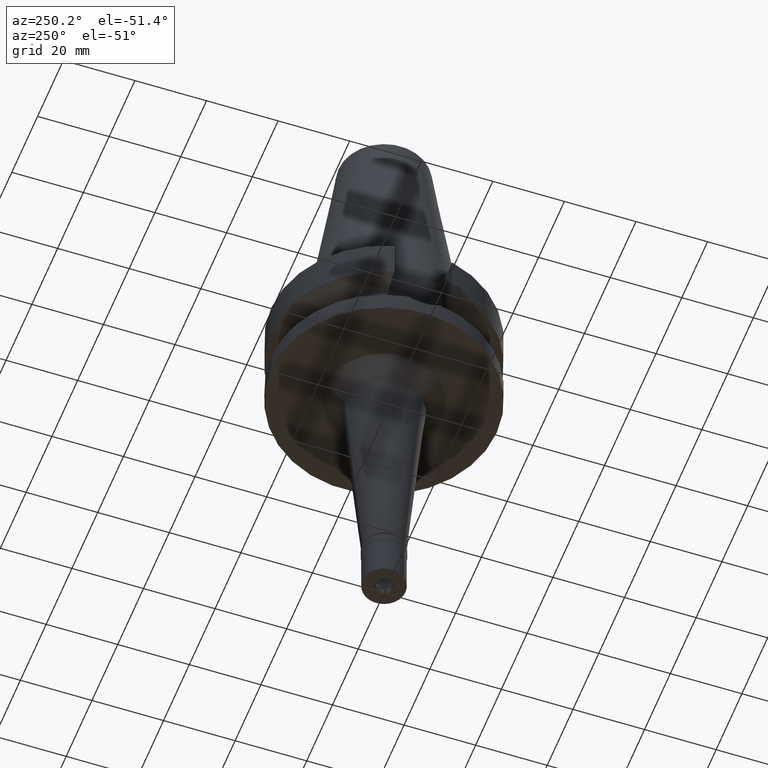
[diagram: clean part render]
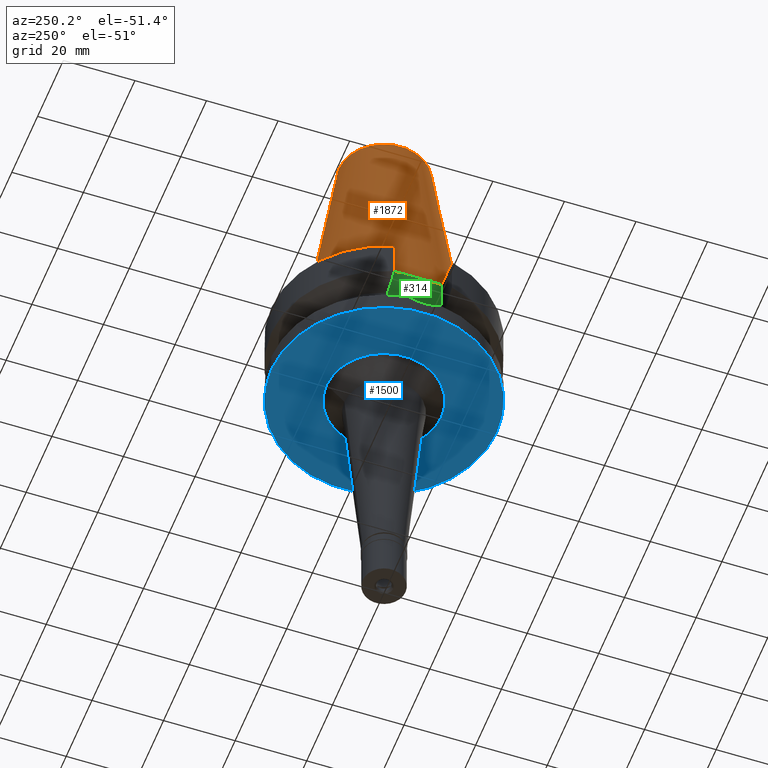
[diagram: same view with three faces highlighted in distinct colors, each labeled with its STEP entity id]
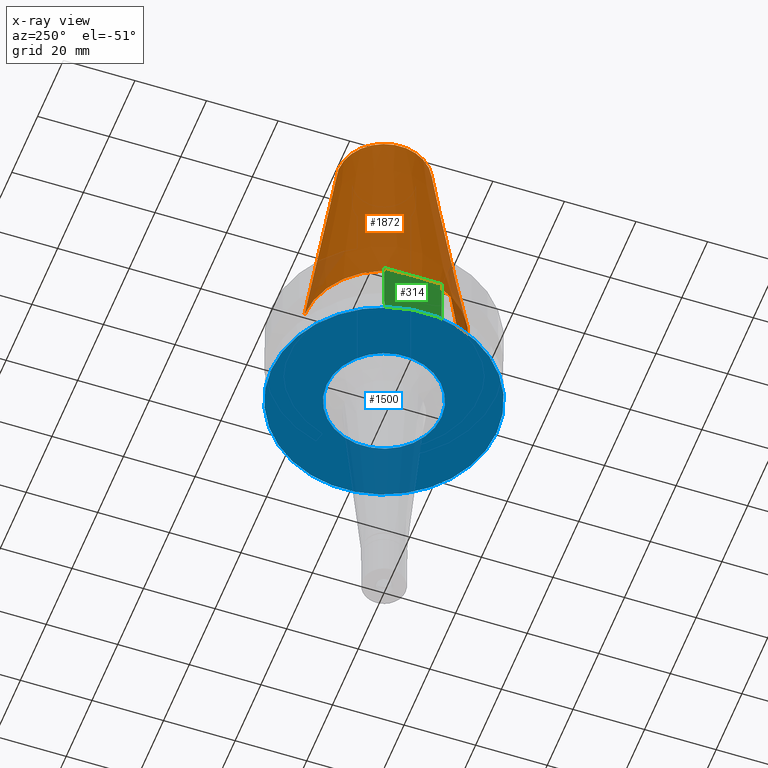
[diagram: x-ray of the same camera — body ghosted, the three highlighted faces saturated]
A machine part, auxiliary view with three faces highlighted in distinct colors.
The next image is the same camera in x-ray (body ghosted, the three faces saturated) — at least one of them is partly hidden behind the body in this view.
Their STEP definitions:

[orange] entity #1872 — the highlighted conical surface has half-angle 8.297 deg.
#65 = DIRECTION ( 'NONE',  ( 0.0000000000000000000, -1.000000000000000000, 0.0000000000000000000 ) ) ;
#108 = DIRECTION ( 'NONE',  ( 0.0000000000000000000, -1.000000000000000000, 0.0000000000000000000 ) ) ;
#260 = CARTESIAN_POINT ( 'NONE',  ( 0.0000000000000000000, 12.68766899429999917, 65.40000000000000568 ) ) ;
#324 = EDGE_CURVE ( 'NONE', #1921, #434, #699, .T. ) ;
#434 = VERTEX_POINT ( 'NONE', #598 ) ;
#444 = ORIENTED_EDGE ( 'NONE', *, *, #324, .T. ) ;
#450 = DIRECTION ( 'NONE',  ( 0.0000000000000000000, 0.0000000000000000000, -1.000000000000000000 ) ) ;
#452 = DIRECTION ( 'NONE',  ( 0.0000000000000000000, -0.1443043893539925626, -0.9895333461855498891 ) ) ;
#497 = EDGE_CURVE ( 'NONE', #1963, #2721, #678, .T. ) ;
#512 = CARTESIAN_POINT ( 'NONE',  ( 0.0000000000000000000, 12.68766899429999917, 65.40000000000000568 ) ) ;
#598 = CARTESIAN_POINT ( 'NONE',  ( 0.0000000000000000000, 22.22500000000000142, 1.065814103639999827E-13 ) ) ;
#672 = CIRCLE ( 'NONE', #2382, 22.22500000000000142 ) ;
#676 = DIRECTION ( 'NONE',  ( 0.0000000000000000000, -1.000000000000000000, 0.0000000000000000000 ) ) ;
#678 = LINE ( 'NONE', #2540, #1576 ) ;
#699 = LINE ( 'NONE', #260, #807 ) ;
#720 = CIRCLE ( 'NONE', #2517, 12.68766899429999917 ) ;
#784 = DIRECTION ( 'NONE',  ( 0.0000000000000000000, 0.0000000000000000000, -1.000000000000000000 ) ) ;
#807 = VECTOR ( 'NONE', #1143, 1000.000000000000114 ) ;
#942 = CARTESIAN_POINT ( 'NONE',  ( 0.0000000000000000000, -22.22500000000000142, 1.065814103639999827E-13 ) ) ;
#1143 = DIRECTION ( 'NONE',  ( 0.0000000000000000000, 0.1443043893539925626, -0.9895333461855498891 ) ) ;
#1204 = DIRECTION ( 'NONE',  ( 0.0000000000000000000, 0.0000000000000000000, -1.000000000000000000 ) ) ;
#1252 = EDGE_CURVE ( 'NONE', #2721, #434, #672, .T. ) ;
#1362 = CARTESIAN_POINT ( 'NONE',  ( 0.0000000000000000000, -12.68766899429999917, 65.40000000000000568 ) ) ;
#1395 = FACE_OUTER_BOUND ( 'NONE', #1906, .T. ) ;
#1481 = CARTESIAN_POINT ( 'NONE',  ( 0.0000000000000000000, 1.625106302469000024E-14, 2.842170943039999687E-14 ) ) ;
#1509 = ORIENTED_EDGE ( 'NONE', *, *, #497, .F. ) ;
#1576 = VECTOR ( 'NONE', #452, 1000.000000000000114 ) ;
#1626 = AXIS2_PLACEMENT_3D ( 'NONE', #2760, #450, #676 ) ;
#1750 = ORIENTED_EDGE ( 'NONE', *, *, #2061, .T. ) ;
#1872 = ADVANCED_FACE ( 'NONE', ( #1395 ), #2666, .T. ) ;
#1906 = EDGE_LOOP ( 'NONE', ( #2145, #1509, #1750, #444 ) ) ;
#1921 = VERTEX_POINT ( 'NONE', #512 ) ;
#1963 = VERTEX_POINT ( 'NONE', #1362 ) ;
#2061 = EDGE_CURVE ( 'NONE', #1963, #1921, #720, .T. ) ;
#2145 = ORIENTED_EDGE ( 'NONE', *, *, #1252, .F. ) ;
#2382 = AXIS2_PLACEMENT_3D ( 'NONE', #1481, #1204, #65 ) ;
#2517 = AXIS2_PLACEMENT_3D ( 'NONE', #2862, #784, #108 ) ;
#2540 = CARTESIAN_POINT ( 'NONE',  ( 0.0000000000000000000, -12.68766899429999917, 65.40000000000000568 ) ) ;
#2666 = CONICAL_SURFACE ( 'NONE', #1626, 17.45633449714999941, 0.1448099680379422438 ) ;
#2721 = VERTEX_POINT ( 'NONE', #942 ) ;
#2760 = CARTESIAN_POINT ( 'NONE',  ( 0.0000000000000000000, 1.625106302469000024E-14, 32.70000000000000284 ) ) ;
#2862 = CARTESIAN_POINT ( 'NONE',  ( 0.0000000000000000000, 1.625106302469000024E-14, 65.40000000000000568 ) ) ;

[blue] entity #1500 — the highlighted planar face has unit normal (0, 0, -1).
#56 = CIRCLE ( 'NONE', #1336, 31.50000000000000000 ) ;
#84 = DIRECTION ( 'NONE',  ( 0.0000000000000000000, 0.0000000000000000000, 1.000000000000000000 ) ) ;
#117 = CARTESIAN_POINT ( 'NONE',  ( 0.0000000000000000000, 31.50000000000000000, -27.00000000000000000 ) ) ;
#312 = ORIENTED_EDGE ( 'NONE', *, *, #1458, .F. ) ;
#332 = PLANE ( 'NONE',  #854 ) ;
#508 = DIRECTION ( 'NONE',  ( 0.0000000000000000000, -1.000000000000000000, 0.0000000000000000000 ) ) ;
#531 = CARTESIAN_POINT ( 'NONE',  ( 0.0000000000000000000, 2.127456419478999887E-14, -27.00000000000000000 ) ) ;
#579 = DIRECTION ( 'NONE',  ( 0.0000000000000000000, 1.000000000000000000, 0.0000000000000000000 ) ) ;
#702 = DIRECTION ( 'NONE',  ( 0.0000000000000000000, 1.000000000000000000, 0.0000000000000000000 ) ) ;
#765 = ORIENTED_EDGE ( 'NONE', *, *, #2847, .F. ) ;
#779 = DIRECTION ( 'NONE',  ( 0.0000000000000000000, 0.0000000000000000000, -1.000000000000000000 ) ) ;
#831 = VERTEX_POINT ( 'NONE', #117 ) ;
#854 = AXIS2_PLACEMENT_3D ( 'NONE', #1944, #779, #508 ) ;
#879 = ORIENTED_EDGE ( 'NONE', *, *, #2087, .F. ) ;
#895 = CARTESIAN_POINT ( 'NONE',  ( 0.0000000000000000000, 0.0000000000000000000, -27.00000000000000000 ) ) ;
#1023 = AXIS2_PLACEMENT_3D ( 'NONE', #895, #2314, #702 ) ;
#1027 = VERTEX_POINT ( 'NONE', #1150 ) ;
#1118 = CARTESIAN_POINT ( 'NONE',  ( 0.0000000000000000000, 0.0000000000000000000, -27.00000000000000000 ) ) ;
#1150 = CARTESIAN_POINT ( 'NONE',  ( 0.0000000000000000000, -16.05684475179999993, -27.00000000000000000 ) ) ;
#1156 = EDGE_LOOP ( 'NONE', ( #879, #765 ) ) ;
#1240 = FACE_BOUND ( 'NONE', #2566, .T. ) ;
#1257 = CARTESIAN_POINT ( 'NONE',  ( 0.0000000000000000000, 2.127456419478999887E-14, -27.00000000000000000 ) ) ;
#1336 = AXIS2_PLACEMENT_3D ( 'NONE', #1257, #1947, #579 ) ;
#1410 = AXIS2_PLACEMENT_3D ( 'NONE', #531, #84, #2864 ) ;
#1458 = EDGE_CURVE ( 'NONE', #1027, #2248, #2140, .T. ) ;
#1500 = ADVANCED_FACE ( 'NONE', ( #2625, #1240 ), #332, .T. ) ;
#1579 = AXIS2_PLACEMENT_3D ( 'NONE', #1118, #2538, #2057 ) ;
#1892 = VERTEX_POINT ( 'NONE', #2147 ) ;
#1944 = CARTESIAN_POINT ( 'NONE',  ( 0.0000000000000000000, 0.0000000000000000000, -27.00000000000000000 ) ) ;
#1947 = DIRECTION ( 'NONE',  ( 0.0000000000000000000, 0.0000000000000000000, 1.000000000000000000 ) ) ;
#1949 = ORIENTED_EDGE ( 'NONE', *, *, #2784, .F. ) ;
#2057 = DIRECTION ( 'NONE',  ( 0.0000000000000000000, -1.000000000000000000, 0.0000000000000000000 ) ) ;
#2087 = EDGE_CURVE ( 'NONE', #831, #1892, #56, .T. ) ;
#2140 = CIRCLE ( 'NONE', #1579, 16.05684475179999993 ) ;
#2147 = CARTESIAN_POINT ( 'NONE',  ( 0.0000000000000000000, -31.50000000000000000, -27.00000000000000000 ) ) ;
#2208 = CIRCLE ( 'NONE', #1023, 16.05684475179999993 ) ;
#2248 = VERTEX_POINT ( 'NONE', #2250 ) ;
#2250 = CARTESIAN_POINT ( 'NONE',  ( 0.0000000000000000000, 16.05684475179999993, -27.00000000000000000 ) ) ;
#2314 = DIRECTION ( 'NONE',  ( 0.0000000000000000000, 0.0000000000000000000, -1.000000000000000000 ) ) ;
#2538 = DIRECTION ( 'NONE',  ( 0.0000000000000000000, 0.0000000000000000000, -1.000000000000000000 ) ) ;
#2566 = EDGE_LOOP ( 'NONE', ( #1949, #312 ) ) ;
#2625 = FACE_OUTER_BOUND ( 'NONE', #1156, .T. ) ;
#2736 = CIRCLE ( 'NONE', #1410, 31.50000000000000000 ) ;
#2784 = EDGE_CURVE ( 'NONE', #2248, #1027, #2208, .T. ) ;
#2847 = EDGE_CURVE ( 'NONE', #1892, #831, #2736, .T. ) ;
#2864 = DIRECTION ( 'NONE',  ( 0.0000000000000000000, -1.000000000000000000, 0.0000000000000000000 ) ) ;

[green] entity #314 — the highlighted planar face has unit normal (-1, 0, 0).
#9 = CARTESIAN_POINT ( 'NONE',  ( -22.50000000000000000, -8.050000000000000711, -14.94999999999999929 ) ) ;
#47 = VECTOR ( 'NONE', #1444, 1000.000000000000000 ) ;
#142 = CARTESIAN_POINT ( 'NONE',  ( -22.50000000000000000, 1.807578675540999863E-14, -14.94999999999999929 ) ) ;
#213 = ORIENTED_EDGE ( 'NONE', *, *, #2977, .F. ) ;
#308 = ORIENTED_EDGE ( 'NONE', *, *, #2201, .F. ) ;
#313 = CARTESIAN_POINT ( 'NONE',  ( -22.50000000000000000, -8.050000000000000711, -1.000000000000000000 ) ) ;
#314 = ADVANCED_FACE ( 'NONE', ( #2962 ), #1364, .T. ) ;
#330 = CARTESIAN_POINT ( 'NONE',  ( -22.50000000000000000, -8.050000000000000711, -1.000000000000000000 ) ) ;
#365 = AXIS2_PLACEMENT_3D ( 'NONE', #142, #1799, #1557 ) ;
#441 = CARTESIAN_POINT ( 'NONE',  ( -22.50000000000000000, 2.173748068486999793E-14, 0.0000000000000000000 ) ) ;
#616 = CARTESIAN_POINT ( 'NONE',  ( -22.50000000000000000, 8.050000000000000711, -1.000000000000000000 ) ) ;
#809 = EDGE_CURVE ( 'NONE', #1360, #2776, #1709, .T. ) ;
#907 = ORIENTED_EDGE ( 'NONE', *, *, #2162, .T. ) ;
#1048 = EDGE_LOOP ( 'NONE', ( #308, #213, #1639, #907 ) ) ;
#1157 = VERTEX_POINT ( 'NONE', #2291 ) ;
#1360 = VERTEX_POINT ( 'NONE', #2246 ) ;
#1364 = PLANE ( 'NONE',  #2184 ) ;
#1425 = LINE ( 'NONE', #1610, #2380 ) ;
#1444 = DIRECTION ( 'NONE',  ( 0.0000000000000000000, 1.000000000000000000, 0.0000000000000000000 ) ) ;
#1557 = DIRECTION ( 'NONE',  ( 0.0000000000000000000, 0.0000000000000000000, -1.000000000000000000 ) ) ;
#1610 = CARTESIAN_POINT ( 'NONE',  ( -22.50000000000000000, 8.050000000000000711, -14.94999999999999929 ) ) ;
#1639 = ORIENTED_EDGE ( 'NONE', *, *, #809, .F. ) ;
#1709 = LINE ( 'NONE', #330, #2703 ) ;
#1799 = DIRECTION ( 'NONE',  ( 1.000000000000000000, 0.0000000000000000000, 0.0000000000000000000 ) ) ;
#1829 = DIRECTION ( 'NONE',  ( 0.0000000000000000000, 0.0000000000000000000, 1.000000000000000000 ) ) ;
#1905 = LINE ( 'NONE', #313, #47 ) ;
#2097 = VERTEX_POINT ( 'NONE', #616 ) ;
#2162 = EDGE_CURVE ( 'NONE', #1360, #2097, #1905, .T. ) ;
#2184 = AXIS2_PLACEMENT_3D ( 'NONE', #441, #2797, #1829 ) ;
#2201 = EDGE_CURVE ( 'NONE', #1157, #2097, #1425, .T. ) ;
#2246 = CARTESIAN_POINT ( 'NONE',  ( -22.50000000000000000, -8.050000000000000711, -1.000000000000000000 ) ) ;
#2291 = CARTESIAN_POINT ( 'NONE',  ( -22.50000000000000000, 8.050000000000000711, -14.94999999999999929 ) ) ;
#2308 = CIRCLE ( 'NONE', #365, 8.050000000000000711 ) ;
#2380 = VECTOR ( 'NONE', #2591, 1000.000000000000000 ) ;
#2591 = DIRECTION ( 'NONE',  ( 0.0000000000000000000, 0.0000000000000000000, 1.000000000000000000 ) ) ;
#2664 = DIRECTION ( 'NONE',  ( 0.0000000000000000000, 0.0000000000000000000, -1.000000000000000000 ) ) ;
#2703 = VECTOR ( 'NONE', #2664, 1000.000000000000000 ) ;
#2776 = VERTEX_POINT ( 'NONE', #9 ) ;
#2797 = DIRECTION ( 'NONE',  ( -1.000000000000000000, 0.0000000000000000000, 0.0000000000000000000 ) ) ;
#2962 = FACE_OUTER_BOUND ( 'NONE', #1048, .T. ) ;
#2977 = EDGE_CURVE ( 'NONE', #2776, #1157, #2308, .T. ) ;